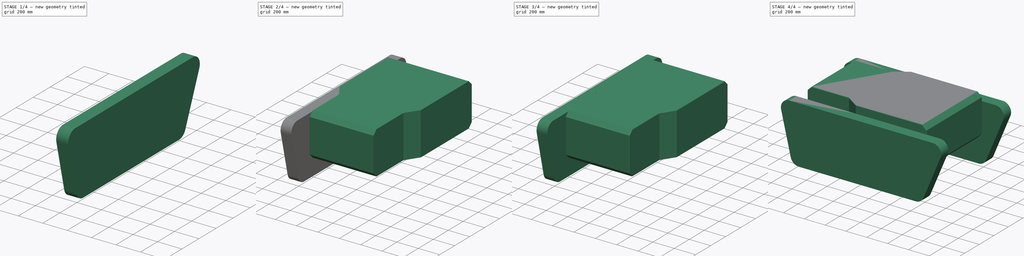
[diagram: build sequence overview — one tinted view per stage of 4, left to right]
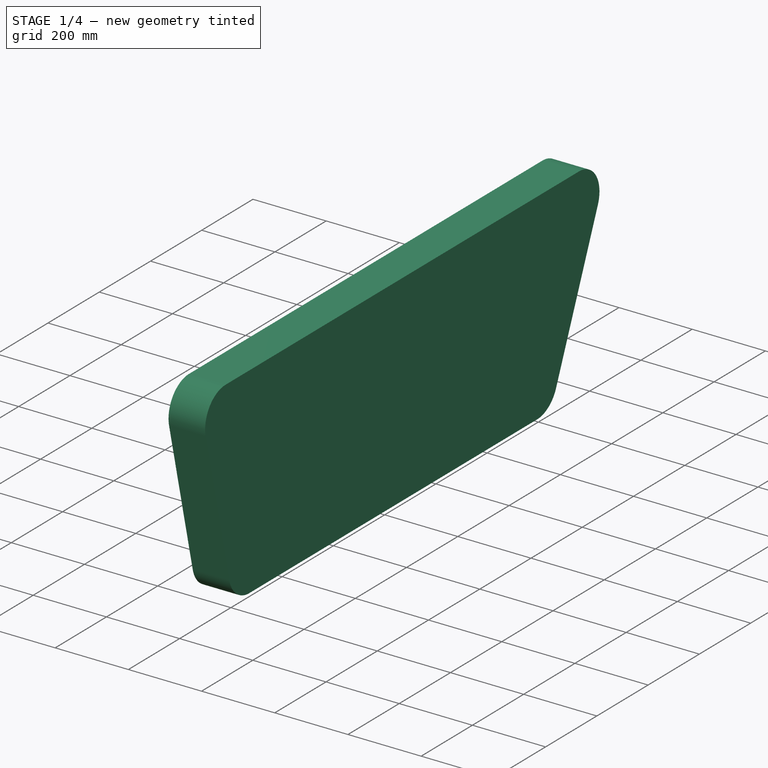
[diagram: stage 1 of 4 — iso view after this stage's code; geometry added in this stage tinted green]
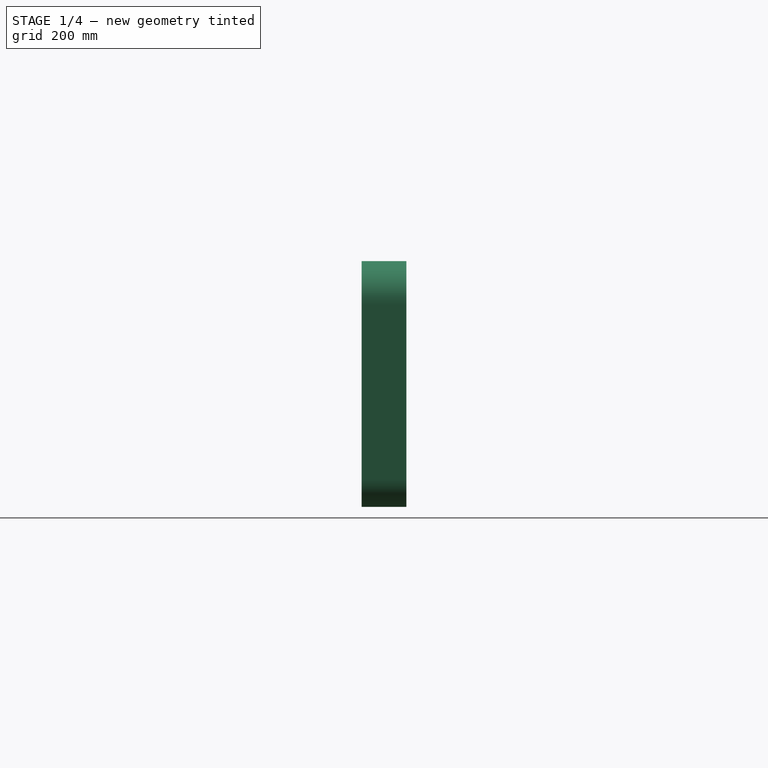
[diagram: stage 1 of 4 — front view after this stage's code; geometry added in this stage tinted green]
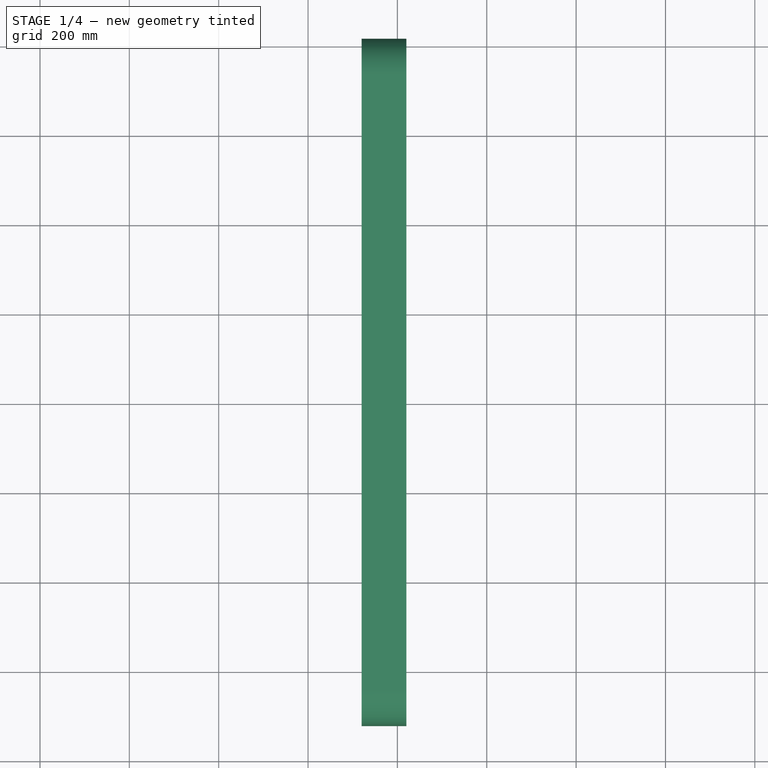
[diagram: stage 1 of 4 — top view after this stage's code; geometry added in this stage tinted green]
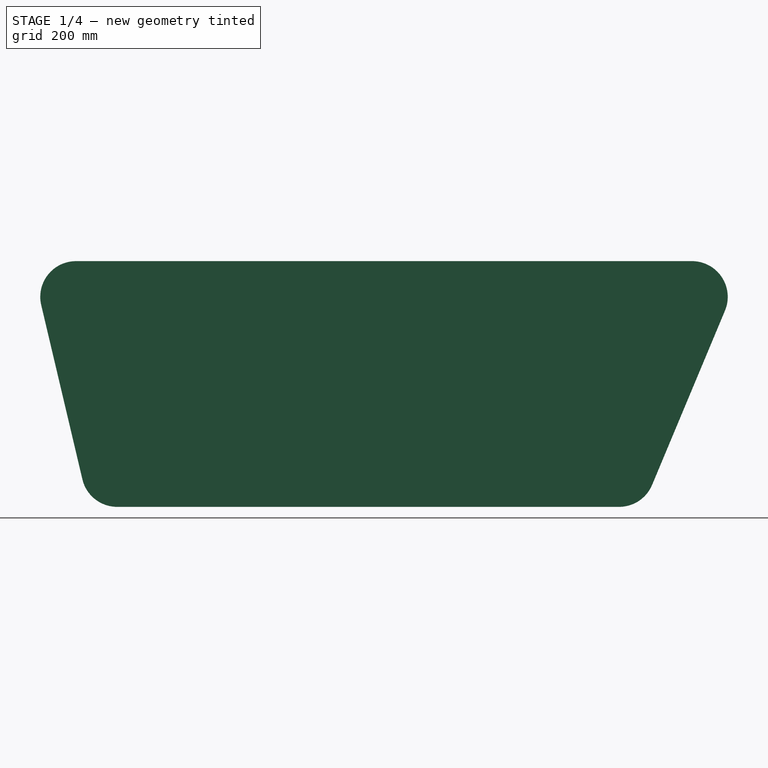
[diagram: stage 1 of 4 — right view after this stage's code; geometry added in this stage tinted green]
FCSTD DOCUMENT  (FreeCAD 0.16R6703 (Git))
Label: RUDA
License: All rights reserved
LicenseURL: http://en.wikipedia.org/wiki/All_rights_reserved
objects: Part::Fillet×4, Sketcher::SketchObject×2, Part::Extrusion×2, Part::Fuse×2, Part::Chamfer×1, Part::Mirroring×1
note: 12 computed .brp shape members not serialized (recipe doc carries the construction recipe); baked Part::Feature solids carry a one-line shape summary decoded from their .brp

FEATURE [Sketcher::SketchObject] Sketch001
  Placement = pos=(0,0,0) rot=(1,0,0;1.5708rad)
  sketch-geometry (4):
    g0: LineSegment StartX=-750 StartY=325 StartZ=0 EndX=-620 EndY=-225 EndZ=0
    g1: LineSegment StartX=-620 StartY=-225 StartZ=0 EndX=620 EndY=-225 EndZ=0
    g2: LineSegment StartX=620 StartY=-225 StartZ=0 EndX=850 EndY=325 EndZ=0
    g3: LineSegment StartX=850 StartY=325 StartZ=0 EndX=-750 EndY=325 EndZ=0
  constraints (12):
    c: Coincident(g0,g1)
    c: Horizontal(g1)
    c: Coincident(g1,g2)
    c: Coincident(g2,g3)
    c: Coincident(g3,g0)
    c: Horizontal(g3)
    c: Distance(g0,g1) = 550
    c: Distance(g3) = 1600
    c: Distance(g1) = 1240
    c: Distance(g-1,g1) = 225
    c: DistanceX(g-2,g0) = -620
    c: DistanceX(g-2,g0) = -750
FEATURE [Part::Extrusion] Extrude001
  Base = -> Sketch001
  Dir = (0,100,0)
  Solid = true
FEATURE [Part::Fillet] Fillet003  label="Pas001"
  Base = -> Extrude001
  Edges = 4 edges r=80: [Edge1,Edge2,Edge5,Edge8]
  Placement = pos=(-380,0,0) rot=(0,0,1;1.5708rad)
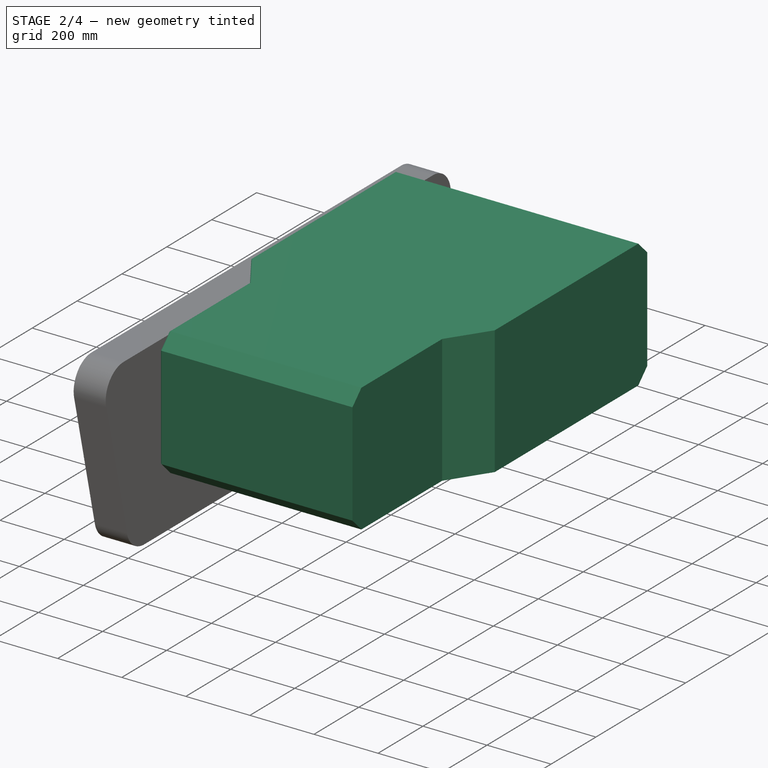
[diagram: stage 2 of 4 — iso view after this stage's code; geometry added in this stage tinted green]
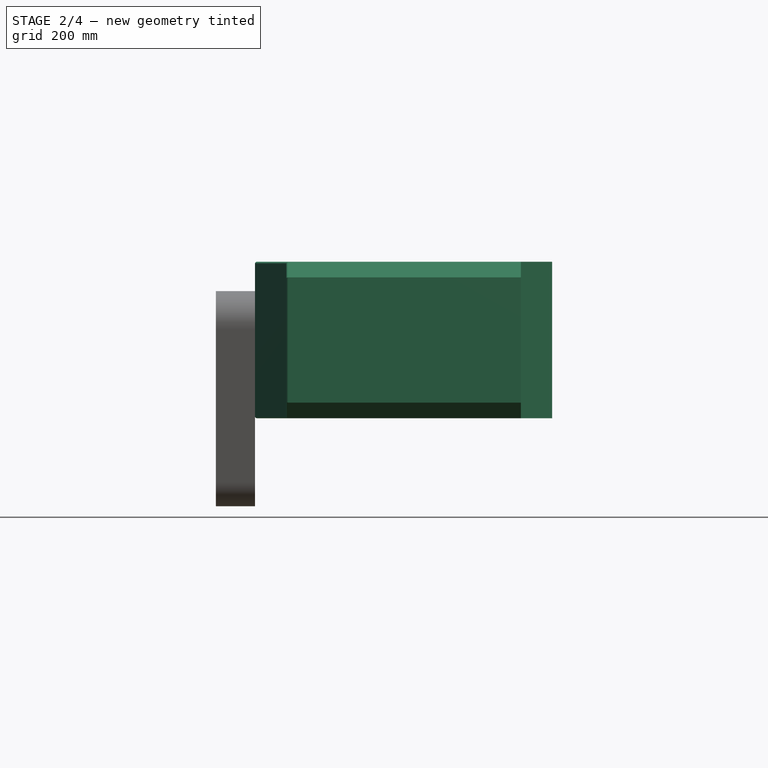
[diagram: stage 2 of 4 — front view after this stage's code; geometry added in this stage tinted green]
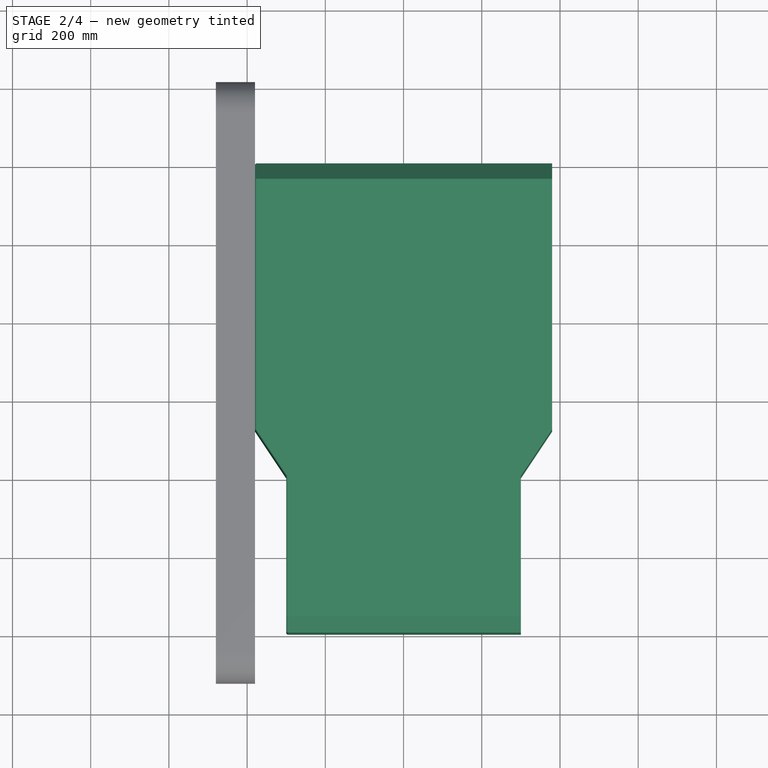
[diagram: stage 2 of 4 — top view after this stage's code; geometry added in this stage tinted green]
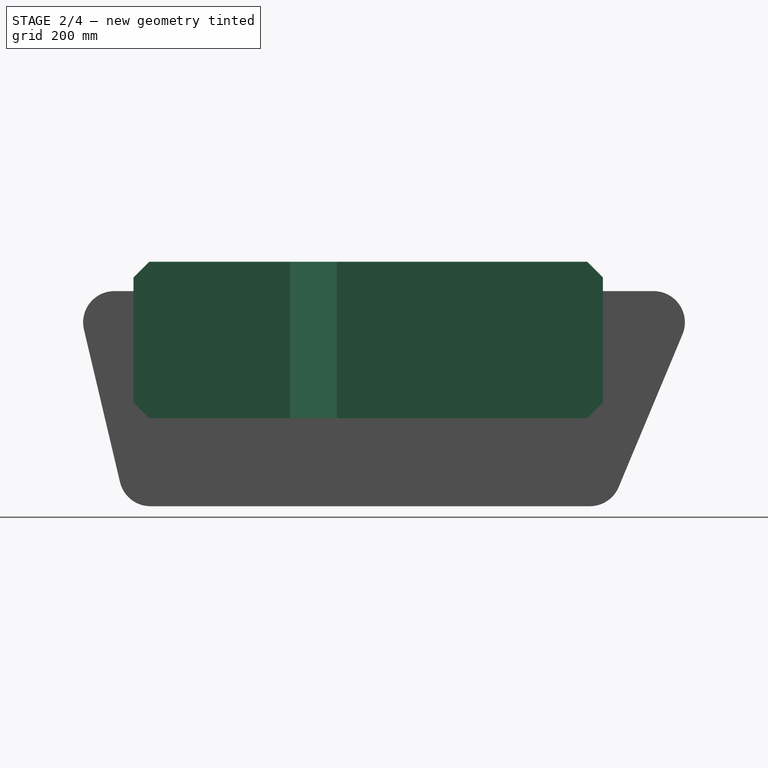
[diagram: stage 2 of 4 — right view after this stage's code; geometry added in this stage tinted green]
FEATURE [Sketcher::SketchObject] Sketch
  sketch-geometry (8):
    g0: LineSegment StartX=-380 StartY=600 StartZ=0 EndX=-380 EndY=-80 EndZ=0
    g1: LineSegment StartX=-380 StartY=-80 StartZ=0 EndX=-300 EndY=-200 EndZ=0
    g2: LineSegment StartX=-300 StartY=-200 StartZ=0 EndX=-300 EndY=-600 EndZ=0
    g3: LineSegment StartX=-300 StartY=-600 StartZ=0 EndX=300 EndY=-600 EndZ=0
    g4: LineSegment StartX=300 StartY=-600 StartZ=0 EndX=300 EndY=-200 EndZ=0
    g5: LineSegment StartX=300 StartY=-200 StartZ=0 EndX=380 EndY=-80 EndZ=0
    g6: LineSegment StartX=380 StartY=-80 StartZ=0 EndX=380 EndY=600 EndZ=0
    g7: LineSegment StartX=380 StartY=600 StartZ=0 EndX=-380 EndY=600 EndZ=0
  constraints (24):
    c: Vertical(g0)
    c: Coincident(g0,g1)
    c: Coincident(g1,g2)
    c: Vertical(g2)
    c: Coincident(g2,g3)
    c: Horizontal(g3)
    c: Coincident(g3,g4)
    c: Vertical(g4)
    c: Coincident(g4,g5)
    c: Coincident(g5,g6)
    c: Vertical(g6)
    c: Coincident(g6,g7)
    c: Coincident(g7,g0)
    c: Horizontal(g7)
    c: Distance(g0,g6) = 760  'Sirka trupu'
    c: Distance(g2,g7) = 1200
    c: Distance(g3,g2) = 600
    c: Distance(g-1,g0) = 380
    c: Distance(g-1,g2) = 300
    c: DistanceY(g5,g0) = 0
    c: DistanceY(g4,g1) = 0
    c: DistanceY(g1,g0) = 120
    c: Distance(g2) = 400
    c: Distance(g-1,g7) = 600
FEATURE [Part::Extrusion] Extrude
  Base = -> Sketch
  Dir = (0,0,400)
  Solid = true
FEATURE [Part::Chamfer] Chamfer
  Base = -> Extrude
  Edges = 4 edges r=40: [Edge12,Edge13,Edge23,Edge24]
FEATURE [Part::Fillet] Fillet
  Base = -> Chamfer
  Edges = 10 edges r=5: [Edge1,Edge4,Edge5,Edge14,Edge16,Edge20,Edge22,Edge28,Edge29,Edge30]
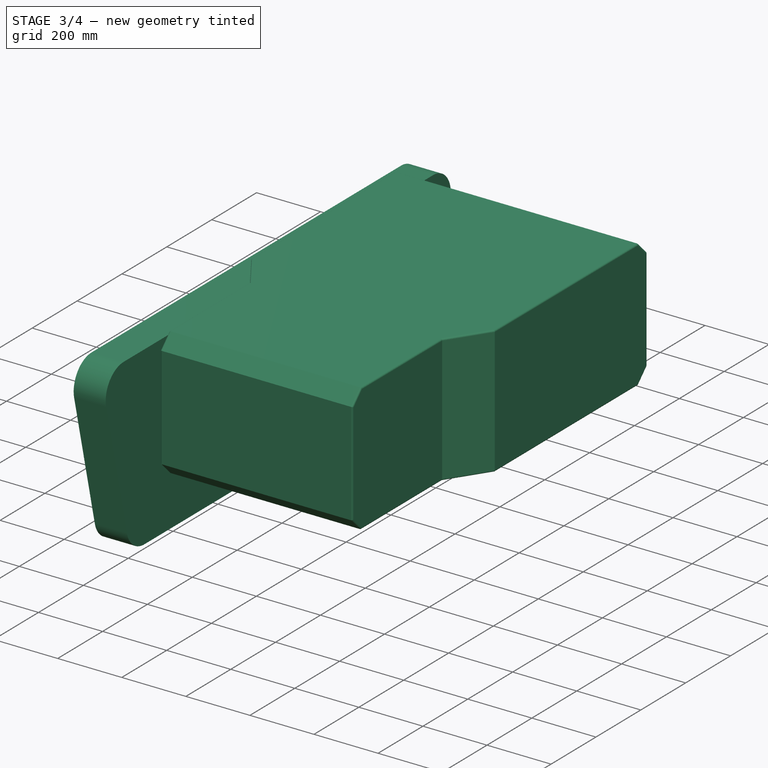
[diagram: stage 3 of 4 — iso view after this stage's code; geometry added in this stage tinted green]
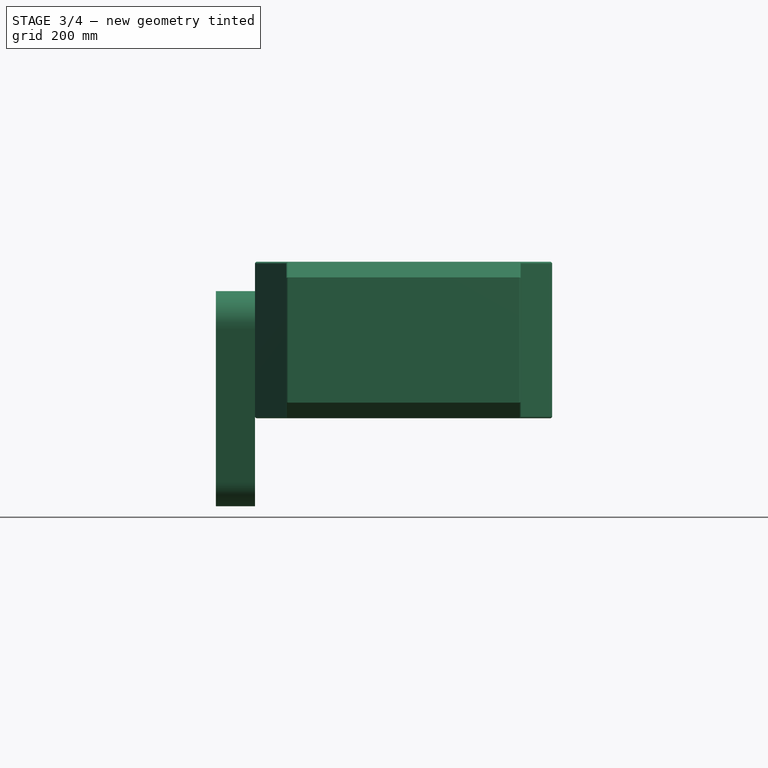
[diagram: stage 3 of 4 — front view after this stage's code; geometry added in this stage tinted green]
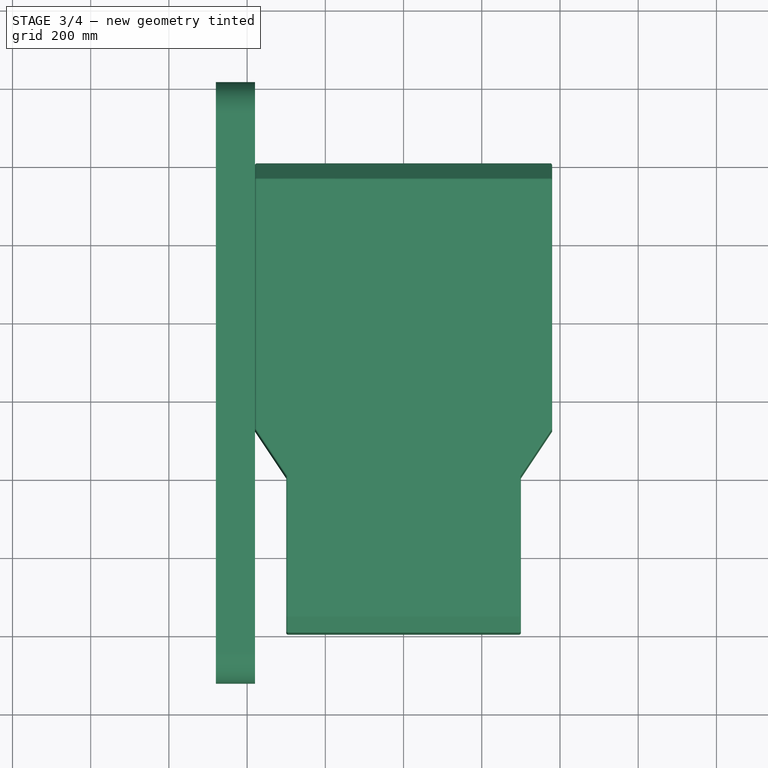
[diagram: stage 3 of 4 — top view after this stage's code; geometry added in this stage tinted green]
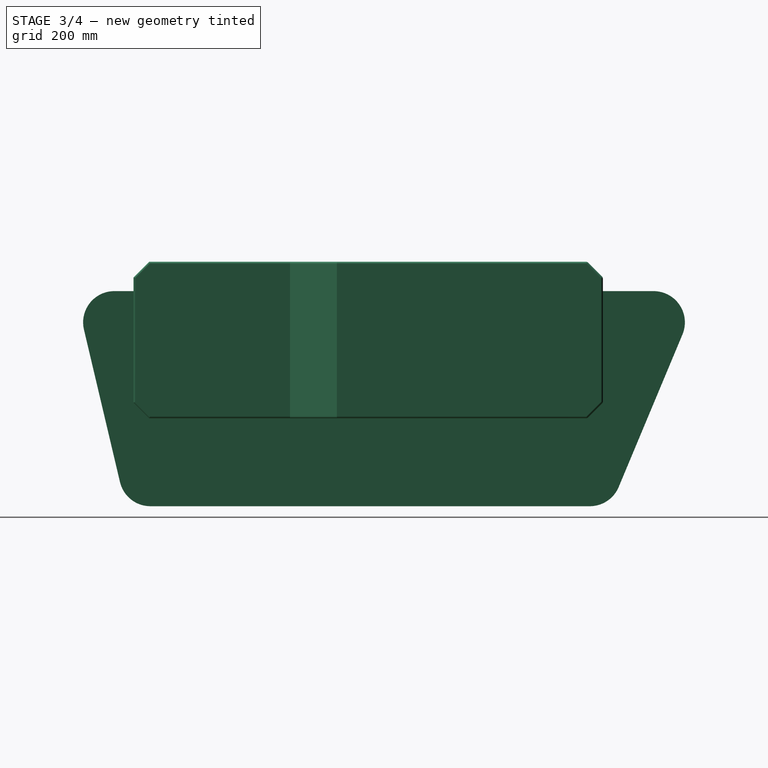
[diagram: stage 3 of 4 — right view after this stage's code; geometry added in this stage tinted green]
FEATURE [Part::Fillet] Fillet001
  Base = -> Fillet
  Edges = 2 edges r=5: [Edge1,Edge4]
FEATURE [Part::Fillet] Fillet002  label="Trup"
  Base = -> Fillet001
  Edges = 12 edges r=5: [Edge43,Edge44,Edge48,Edge57,Edge59,Edge61,Edge65,Edge67,Edge69,Edge84,Edge85,Edge86]
FEATURE [Part::Fuse] Fusion
  Base = -> Fillet002
  Tool = -> Fillet003
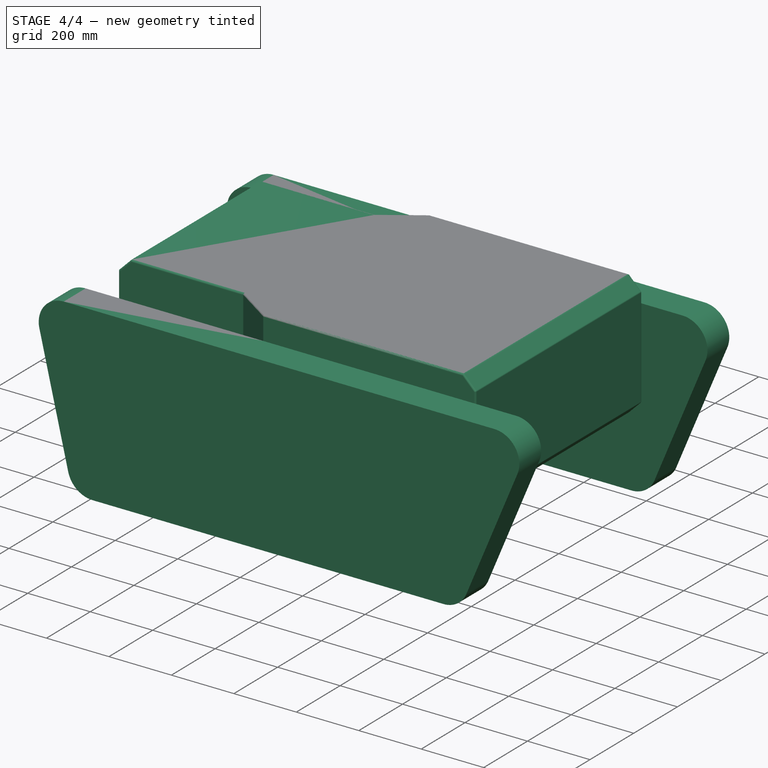
[diagram: stage 4 of 4 — iso view after this stage's code; geometry added in this stage tinted green]
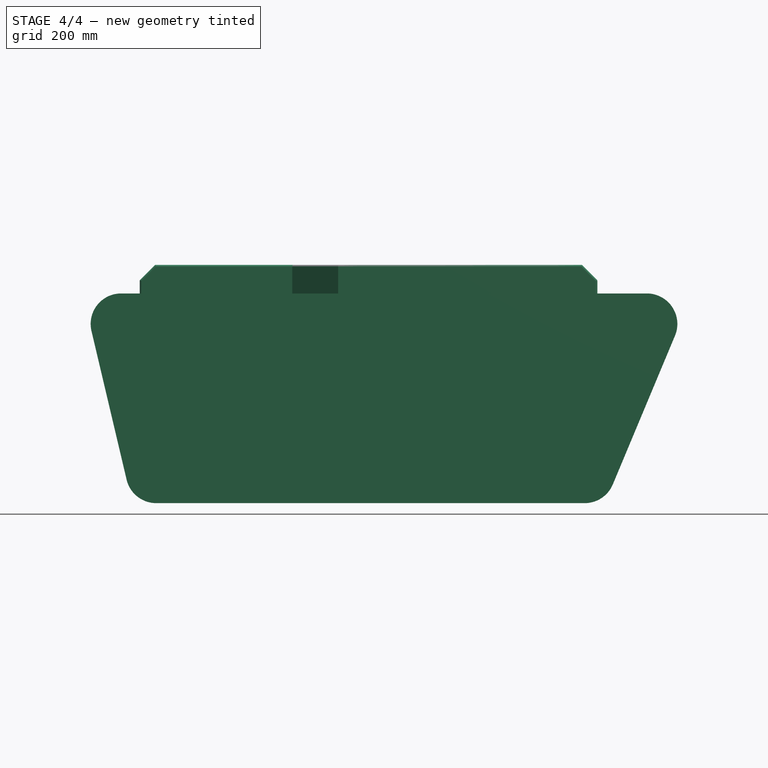
[diagram: stage 4 of 4 — front view after this stage's code; geometry added in this stage tinted green]
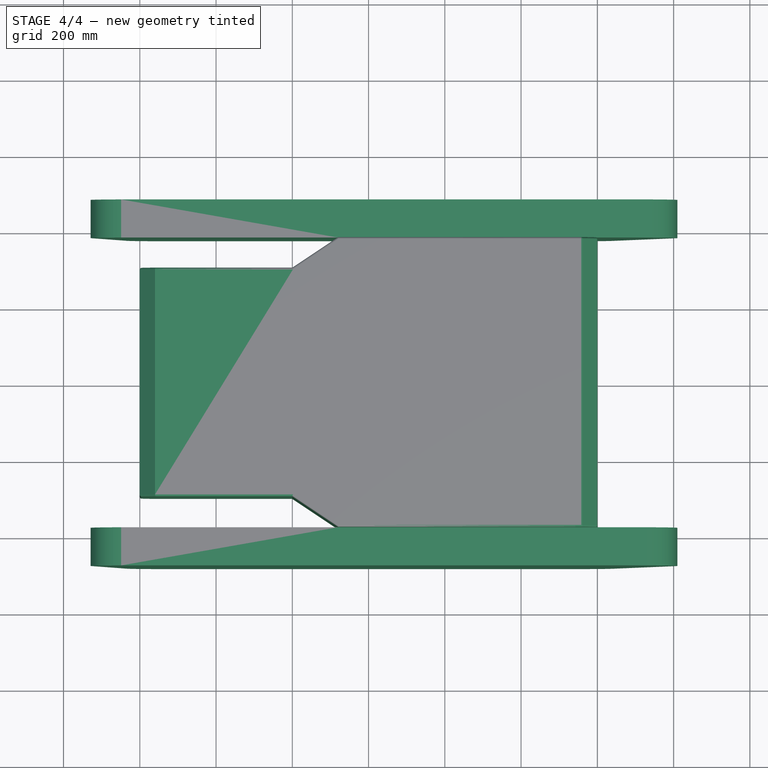
[diagram: stage 4 of 4 — top view after this stage's code; geometry added in this stage tinted green]
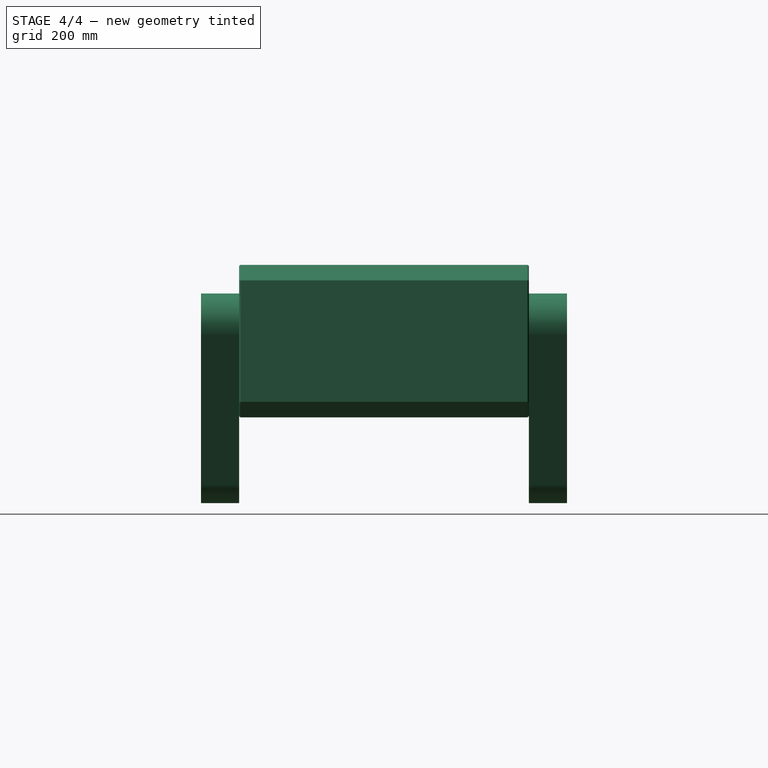
[diagram: stage 4 of 4 — right view after this stage's code; geometry added in this stage tinted green]
FEATURE [Part::Mirroring] Part__Mirroring  label="Pas001 (Mirror #1)"
  Base = (0,0,0)
  Normal = (1,0,0)
  Source = -> Fillet003
FEATURE [Part::Fuse] Fusion001  label="RobotRuda"
  Base = -> Part__Mirroring
  Placement = pos=(0,0,0) rot=(0,0,-1;1.5708rad)
  Tool = -> Fusion
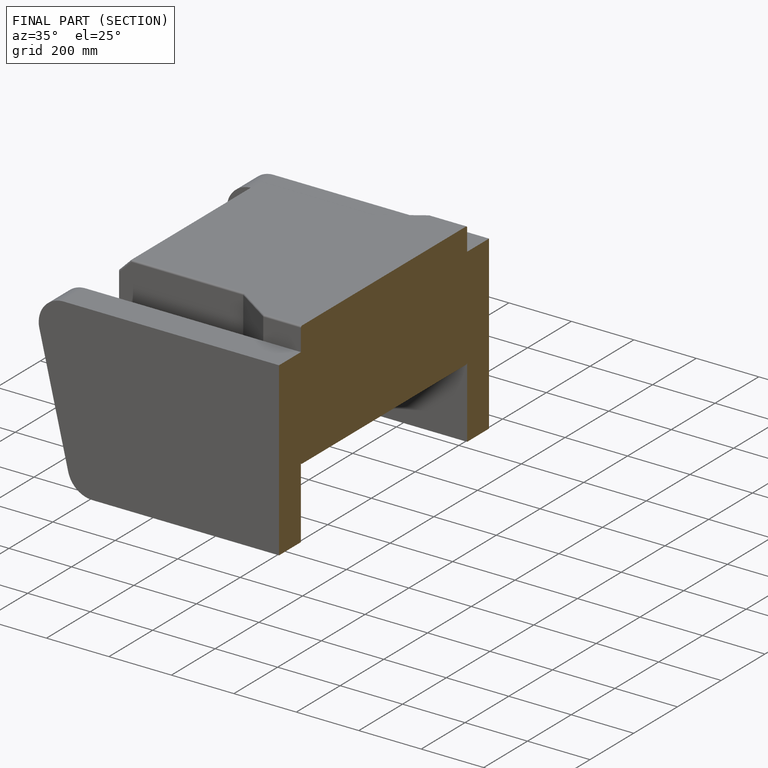
[diagram: finished part — half-section view (interior)]
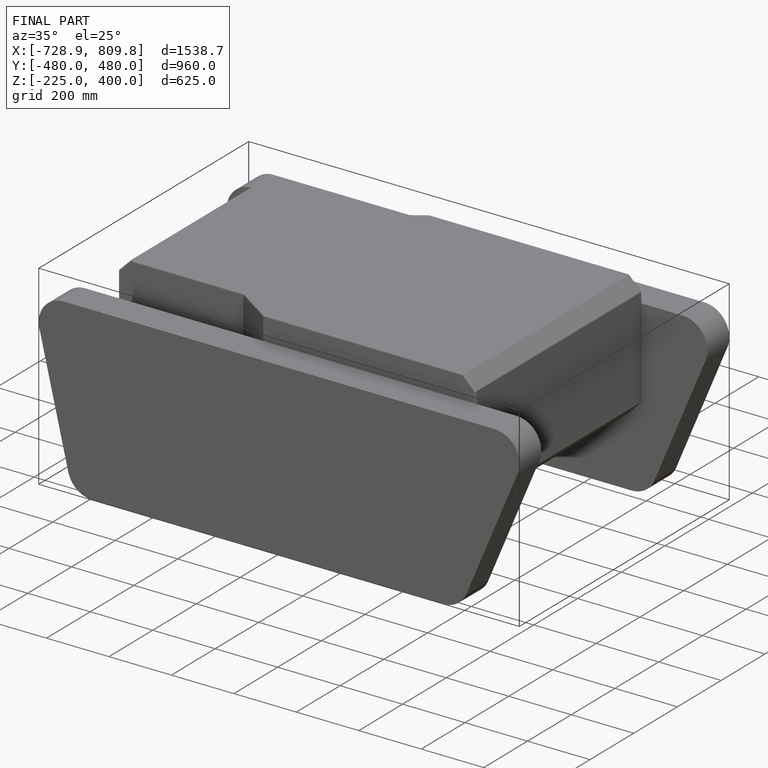
[diagram: finished part — iso view with bounding-box wireframe]
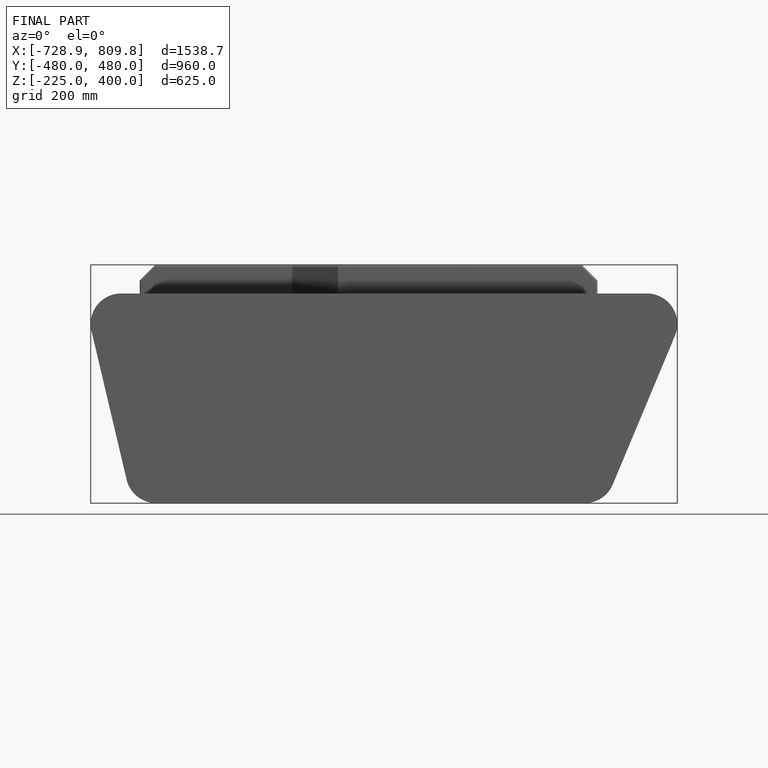
[diagram: finished part — front view with bounding-box wireframe]
